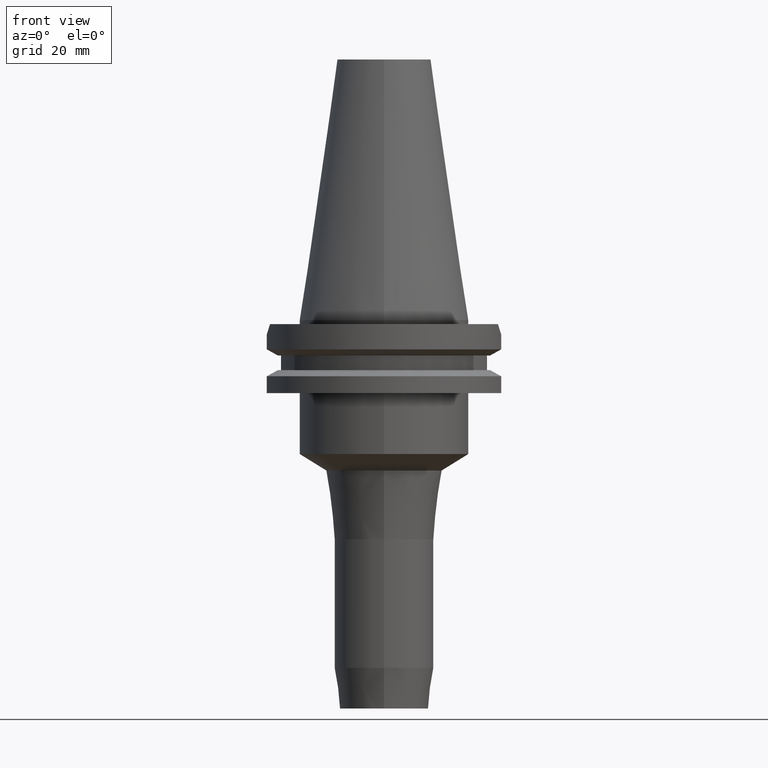
[diagram: clean part render]
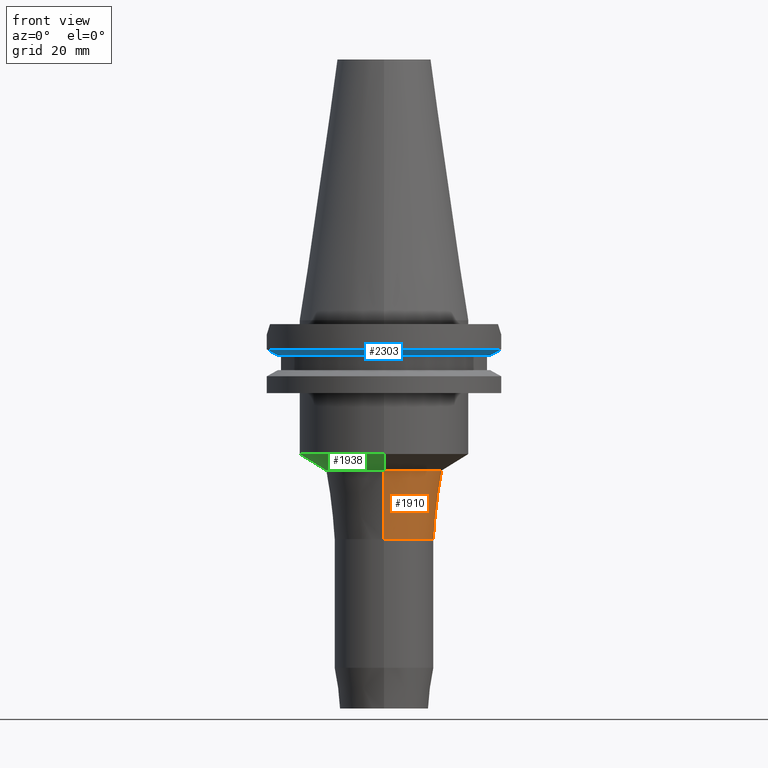
[diagram: same view with three faces highlighted in distinct colors, each labeled with its STEP entity id]
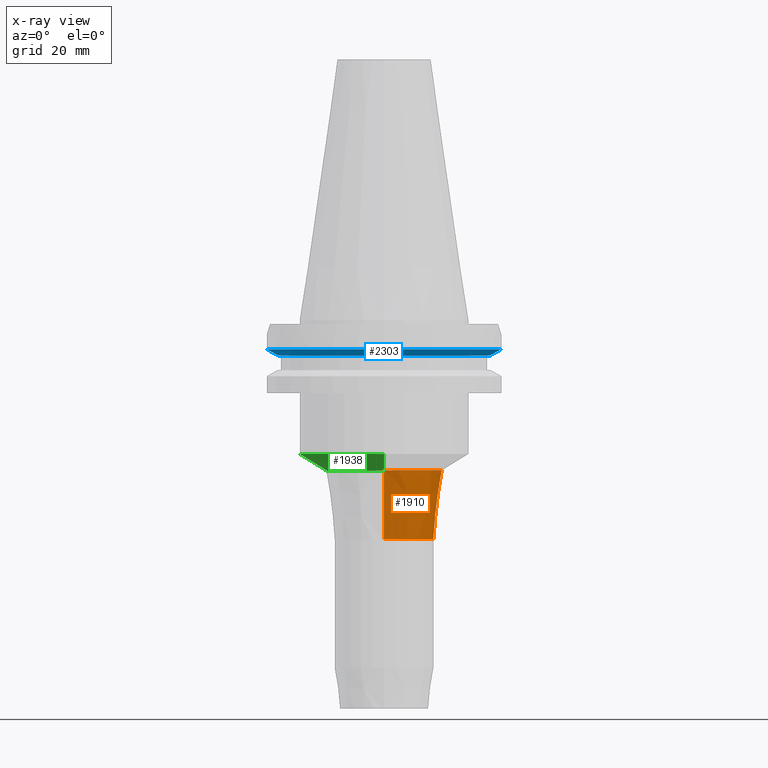
[diagram: x-ray of the same camera — body ghosted, the three highlighted faces saturated]
A machine part, front view with three faces highlighted in distinct colors.
The next image is the same camera in x-ray (body ghosted, the three faces saturated) — at least one of them is partly hidden behind the body in this view.
Their STEP definitions:

[orange] entity #1910 — the highlighted conical surface has half-angle 6.953 deg.
#430=DIRECTION('',(0.E0,-1.210551121724E-1,-9.926457876891E-1));
#431=VECTOR('',#430,1.808690335192E1);
#432=CARTESIAN_POINT('',(0.E0,1.518951211412E1,-3.931811157538E1));
#433=LINE('',#432,#431);
#437=CARTESIAN_POINT('',(0.E0,0.E0,-5.7272E1));
#438=DIRECTION('',(0.E0,0.E0,-1.E0));
#439=DIRECTION('',(0.E0,1.E0,0.E0));
#440=AXIS2_PLACEMENT_3D('',#437,#438,#439);
#445=CARTESIAN_POINT('',(0.E0,0.E0,-3.931811157538E1));
#446=DIRECTION('',(0.E0,0.E0,1.E0));
#447=DIRECTION('',(0.E0,-1.E0,0.E0));
#448=AXIS2_PLACEMENT_3D('',#445,#446,#447);
#453=DIRECTION('',(0.E0,1.210551121724E-1,-9.926457876891E-1));
#454=VECTOR('',#453,1.808690335192E1);
#455=CARTESIAN_POINT('',(0.E0,-1.518951211412E1,-3.931811157538E1));
#456=LINE('',#455,#454);
#1356=CARTESIAN_POINT('',(0.E0,1.3E1,-5.7272E1));
#1357=VERTEX_POINT('',#1356);
#1358=CARTESIAN_POINT('',(0.E0,-1.3E1,-5.7272E1));
#1359=VERTEX_POINT('',#1358);
#1360=CARTESIAN_POINT('',(0.E0,1.518951211412E1,-3.931811157538E1));
#1361=VERTEX_POINT('',#1360);
#1362=CARTESIAN_POINT('',(0.E0,-1.518951211412E1,-3.931811157538E1));
#1363=VERTEX_POINT('',#1362);
#1896=CARTESIAN_POINT('',(0.E0,0.E0,-4.829505578769E1));
#1897=DIRECTION('',(0.E0,0.E0,1.E0));
#1898=DIRECTION('',(0.E0,1.E0,0.E0));
#1899=AXIS2_PLACEMENT_3D('',#1896,#1897,#1898);
#1900=CONICAL_SURFACE('',#1899,1.409475605706E1,6.953E0);
#1902=ORIENTED_EDGE('',*,*,#1901,.T.);
#1903=ORIENTED_EDGE('',*,*,#1891,.T.);
#1905=ORIENTED_EDGE('',*,*,#1904,.F.);
#1907=ORIENTED_EDGE('',*,*,#1906,.T.);
#1908=EDGE_LOOP('',(#1902,#1903,#1905,#1907));
#1909=FACE_OUTER_BOUND('',#1908,.F.);
#441=CIRCLE('',#440,1.3E1);
#449=CIRCLE('',#448,1.518951211412E1);
#1891=EDGE_CURVE('',#1357,#1359,#441,.T.);
#1901=EDGE_CURVE('',#1361,#1357,#433,.T.);
#1904=EDGE_CURVE('',#1363,#1359,#456,.T.);
#1906=EDGE_CURVE('',#1363,#1361,#449,.T.);
#1910=ADVANCED_FACE('',(#1909),#1900,.T.);

[blue] entity #2303 — the highlighted conical surface has half-angle 60 deg.
#638=CARTESIAN_POINT('',(2.778616453850E1,-8.190000190920E0,-9.207500000001E0));
#639=CARTESIAN_POINT('',(2.810749132278E1,-8.190000190920E0,-9.029550869185E0));
#640=CARTESIAN_POINT('',(2.874991655705E1,-8.189999991758E0,-8.673260600819E0));
#641=CARTESIAN_POINT('',(2.971304241111E1,-8.189999742466E0,-8.137892857314E0));
#642=CARTESIAN_POINT('',(3.035472199995E1,-8.190000606407E0,-7.780262222225E0));
#643=CARTESIAN_POINT('',(3.067550146399E1,-8.190000606407E0,-7.601327811715E0));
#676=CARTESIAN_POINT('',(-3.067550165946E1,-8.189999874276E0,
-7.601334354445E0));
#677=CARTESIAN_POINT('',(-3.035472638233E1,-8.189999874276E0,
-7.780266432872E0));
#678=CARTESIAN_POINT('',(-2.971302863466E1,-8.189999973375E0,
-8.137871223015E0));
#679=CARTESIAN_POINT('',(-2.874990664155E1,-8.190000281772E0,
-8.673237294194E0));
#680=CARTESIAN_POINT('',(-2.810748974259E1,-8.189999360282E0,
-9.029558666210E0));
#681=CARTESIAN_POINT('',(-2.778617704607E1,-8.189999360282E0,
-9.207500000001E0));
#942=CARTESIAN_POINT('',(0.E0,1.121722380079E-14,-7.601333230926E0));
#943=DIRECTION('',(0.E0,0.E0,1.E0));
#944=DIRECTION('',(-9.661575315241E-1,-2.579527559055E-1,0.E0));
#945=AXIS2_PLACEMENT_3D('',#942,#943,#944);
#950=CARTESIAN_POINT('',(0.E0,1.121722380079E-14,-7.601333230926E0));
#951=DIRECTION('',(0.E0,0.E0,1.E0));
#952=DIRECTION('',(0.E0,-1.E0,0.E0));
#953=AXIS2_PLACEMENT_3D('',#950,#951,#952);
#981=CARTESIAN_POINT('',(0.E0,1.121722380079E-14,-9.207500000003E0));
#982=DIRECTION('',(0.E0,0.E0,1.E0));
#983=DIRECTION('',(-9.592008904640E-1,-2.827253998727E-1,0.E0));
#984=AXIS2_PLACEMENT_3D('',#981,#982,#983);
#989=CARTESIAN_POINT('',(0.E0,1.121722380079E-14,-9.207500000003E0));
#990=DIRECTION('',(0.E0,0.E0,1.E0));
#991=DIRECTION('',(0.E0,-1.E0,0.E0));
#992=AXIS2_PLACEMENT_3D('',#989,#990,#991);
#1407=CARTESIAN_POINT('',(2.778616453850E1,-8.190000190920E0,
-9.207500000001E0));
#1408=VERTEX_POINT('',#1407);
#1409=VERTEX_POINT('',#643);
#1426=CARTESIAN_POINT('',(-3.067550165946E1,-8.189999874276E0,
-7.601334354445E0));
#1427=VERTEX_POINT('',#1426);
#1428=VERTEX_POINT('',#681);
#1472=CARTESIAN_POINT('',(-3.537899182731E-14,-2.896803755053E1,
-9.207500000003E0));
#1473=VERTEX_POINT('',#1472);
#1478=CARTESIAN_POINT('',(0.E0,-3.175E1,-7.601333230926E0));
#1479=VERTEX_POINT('',#1478);
#2288=CARTESIAN_POINT('',(0.E0,1.121722380079E-14,-8.404416615464E0));
#2289=DIRECTION('',(0.E0,0.E0,1.E0));
#2290=DIRECTION('',(0.E0,1.E0,0.E0));
#2291=AXIS2_PLACEMENT_3D('',#2288,#2289,#2290);
#2292=CONICAL_SURFACE('',#2291,3.035901877527E1,6.E1);
#2293=ORIENTED_EDGE('',*,*,#2047,.F.);
#2295=ORIENTED_EDGE('',*,*,#2294,.F.);
#2297=ORIENTED_EDGE('',*,*,#2296,.F.);
#2298=ORIENTED_EDGE('',*,*,#2086,.F.);
#2299=ORIENTED_EDGE('',*,*,#2278,.T.);
#2300=ORIENTED_EDGE('',*,*,#2276,.T.);
#2301=EDGE_LOOP('',(#2293,#2295,#2297,#2298,#2299,#2300));
#2302=FACE_OUTER_BOUND('',#2301,.F.);
#644=B_SPLINE_CURVE_WITH_KNOTS('',3,(#638,#639,#640,#641,#642,#643),
.UNSPECIFIED.,.F.,.F.,(4,1,1,4),(0.E0,3.333333333333E-1,6.666666666667E-1,1.E0),
.UNSPECIFIED.);
#682=B_SPLINE_CURVE_WITH_KNOTS('',3,(#676,#677,#678,#679,#680,#681),
.UNSPECIFIED.,.F.,.F.,(4,1,1,4),(0.E0,3.333333333333E-1,6.666666666667E-1,1.E0),
.UNSPECIFIED.);
#946=CIRCLE('',#945,3.175E1);
#954=CIRCLE('',#953,3.175E1);
#985=CIRCLE('',#984,2.896803755053E1);
#993=CIRCLE('',#992,2.896803755053E1);
#2047=EDGE_CURVE('',#1408,#1409,#644,.T.);
#2086=EDGE_CURVE('',#1427,#1428,#682,.T.);
#2276=EDGE_CURVE('',#1479,#1409,#954,.T.);
#2278=EDGE_CURVE('',#1427,#1479,#946,.T.);
#2294=EDGE_CURVE('',#1473,#1408,#993,.T.);
#2296=EDGE_CURVE('',#1428,#1473,#985,.T.);
#2303=ADVANCED_FACE('',(#2302),#2292,.T.);

[green] entity #1938 — the highlighted conical surface has half-angle 58.46 deg.
#468=CARTESIAN_POINT('',(0.E0,0.E0,-3.5E1));
#469=DIRECTION('',(0.E0,0.E0,1.E0));
#470=DIRECTION('',(0.E0,1.E0,0.E0));
#471=AXIS2_PLACEMENT_3D('',#468,#469,#470);
#476=DIRECTION('',(0.E0,8.522751837888E-1,-5.230936924661E-1));
#477=VECTOR('',#476,8.254948659429E0);
#478=CARTESIAN_POINT('',(0.E0,-2.2225E1,-3.5E1));
#479=LINE('',#478,#477);
#483=CARTESIAN_POINT('',(0.E0,0.E0,-3.931811157538E1));
#484=DIRECTION('',(0.E0,0.E0,-1.E0));
#485=DIRECTION('',(0.E0,-1.E0,0.E0));
#486=AXIS2_PLACEMENT_3D('',#483,#484,#485);
#491=DIRECTION('',(0.E0,-8.522751837888E-1,-5.230936924661E-1));
#492=VECTOR('',#491,8.254948659429E0);
#493=CARTESIAN_POINT('',(0.E0,2.2225E1,-3.5E1));
#494=LINE('',#493,#492);
#1360=CARTESIAN_POINT('',(0.E0,1.518951211412E1,-3.931811157538E1));
#1361=VERTEX_POINT('',#1360);
#1362=CARTESIAN_POINT('',(0.E0,-1.518951211412E1,-3.931811157538E1));
#1363=VERTEX_POINT('',#1362);
#1364=CARTESIAN_POINT('',(0.E0,2.2225E1,-3.5E1));
#1365=VERTEX_POINT('',#1364);
#1366=CARTESIAN_POINT('',(0.E0,-2.2225E1,-3.5E1));
#1367=VERTEX_POINT('',#1366);
#1924=CARTESIAN_POINT('',(0.E0,0.E0,-3.715905578769E1));
#1925=DIRECTION('',(0.E0,0.E0,1.E0));
#1926=DIRECTION('',(0.E0,1.E0,0.E0));
#1927=AXIS2_PLACEMENT_3D('',#1924,#1925,#1926);
#1928=CONICAL_SURFACE('',#1927,1.870725605706E1,5.846E1);
#1930=ORIENTED_EDGE('',*,*,#1929,.F.);
#1932=ORIENTED_EDGE('',*,*,#1931,.T.);
#1934=ORIENTED_EDGE('',*,*,#1933,.T.);
#1935=ORIENTED_EDGE('',*,*,#1917,.T.);
#1936=EDGE_LOOP('',(#1930,#1932,#1934,#1935));
#1937=FACE_OUTER_BOUND('',#1936,.F.);
#472=CIRCLE('',#471,2.2225E1);
#487=CIRCLE('',#486,1.518951211412E1);
#1917=EDGE_CURVE('',#1363,#1361,#487,.T.);
#1929=EDGE_CURVE('',#1365,#1361,#494,.T.);
#1931=EDGE_CURVE('',#1365,#1367,#472,.T.);
#1933=EDGE_CURVE('',#1367,#1363,#479,.T.);
#1938=ADVANCED_FACE('',(#1937),#1928,.T.);